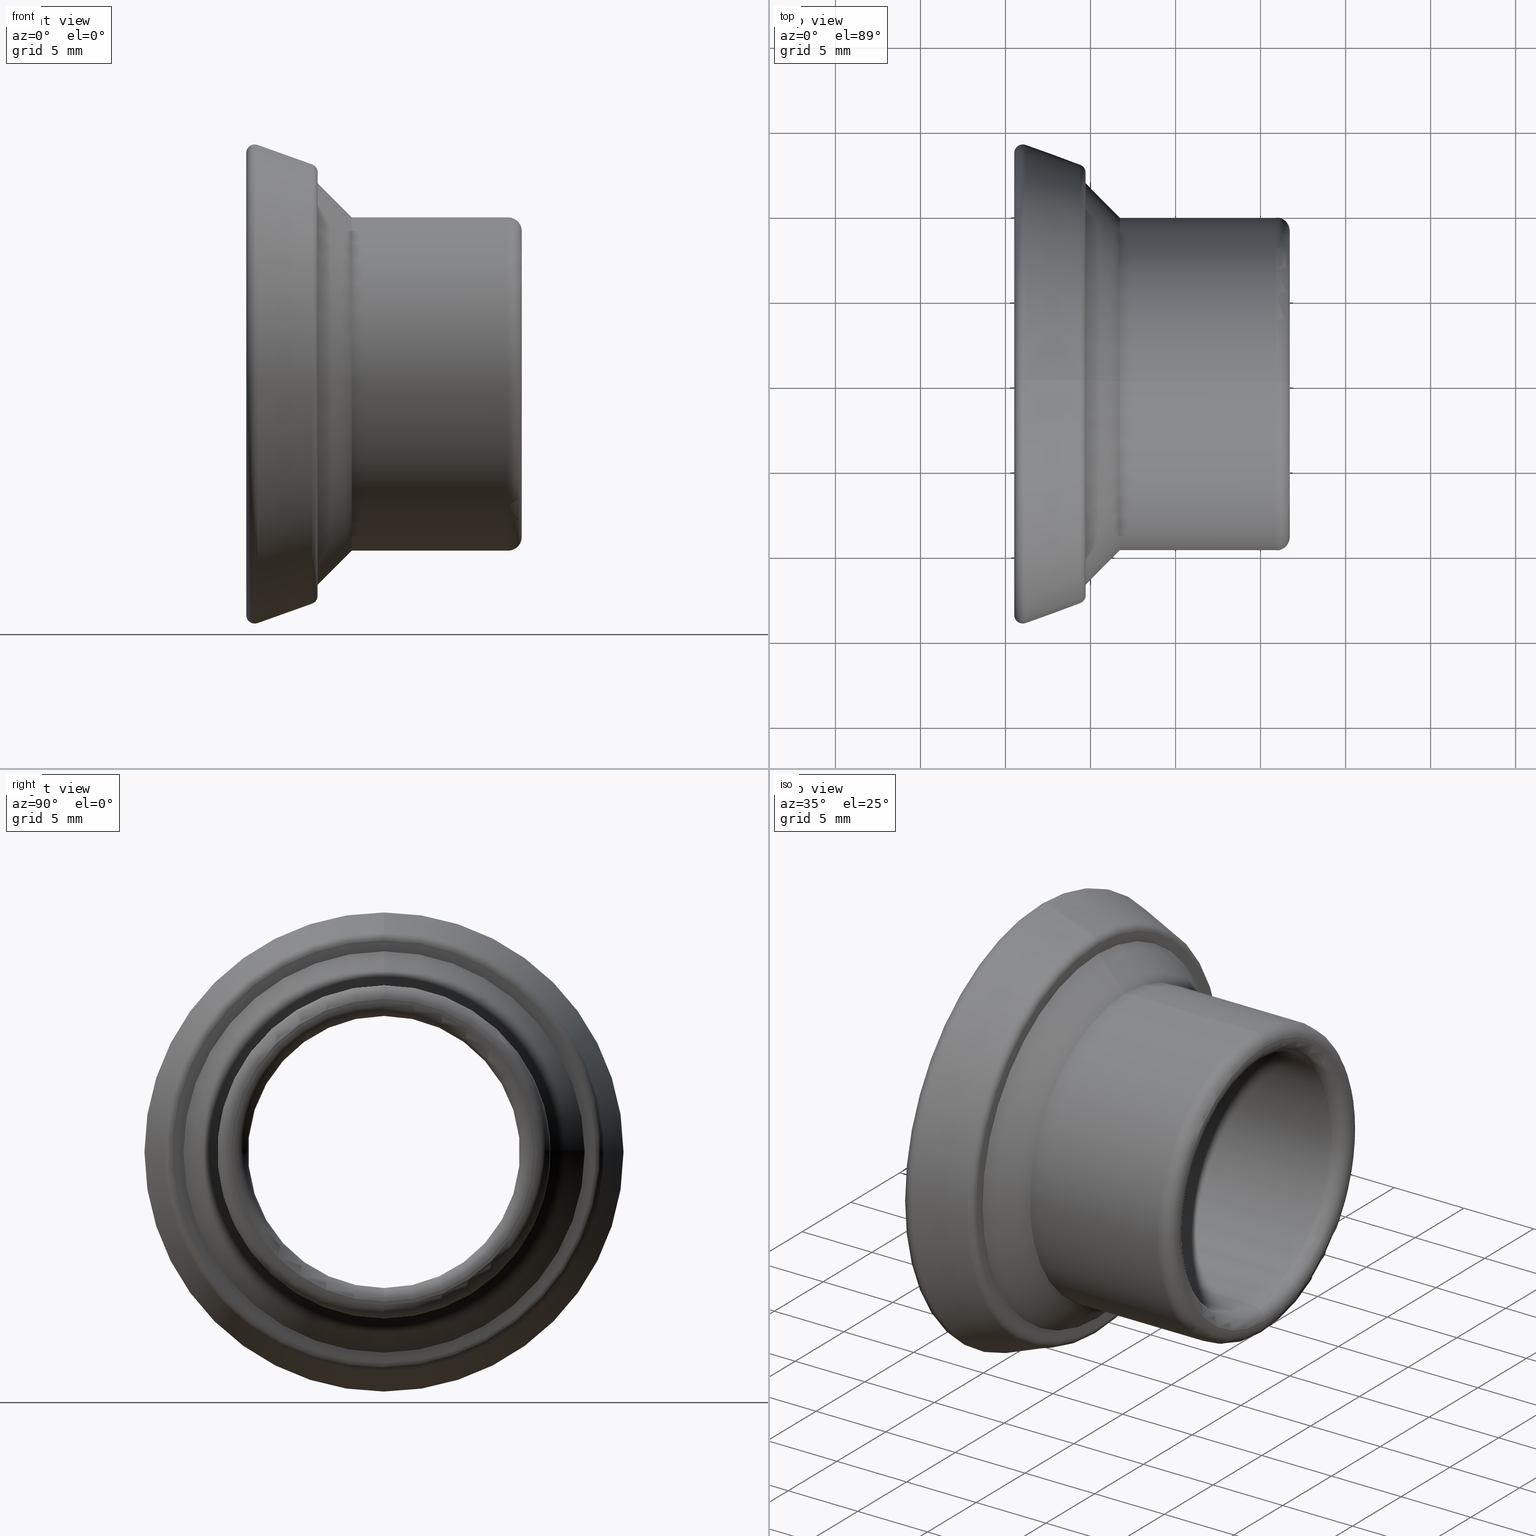
[diagram: canonical four-view strip — front | top / right | iso, engineering-drawing reading convention]
A machine part, canonical four-view strip (front | top / right | iso — engineering-drawing reading convention). The complete STEP part file that produces these views, byte-faithful:
ISO-10303-21;
HEADER;
/* Generated by software containing ST-Developer
 * from STEP Tools, Inc. (www.steptools.com) 
 */
/* OPTION: using custom schema-name function */

FILE_DESCRIPTION(
/* description */ ('VariCAD 2015-2.06 AP-214'),
/* implementation_level */ '2;1');

FILE_NAME(
/* name */ '0393-27-04.stp',
/* time_stamp */ '2016-05-11T12:18:29-06:00',
/* author */ (''),
/* organization */ (''),
/* preprocessor_version */ 'ST-DEVELOPER v14',
/* originating_system */ 'VariCAD 2015-2.06; kernel version (20130303)',

/* authorisation */ '');

FILE_SCHEMA (('AUTOMOTIVE_DESIGN'));
ENDSEC;

DATA;
#10=MECHANICAL_DESIGN_GEOMETRIC_PRESENTATION_REPRESENTATION('',(#257),#826);
#11=CONTEXT_DEPENDENT_SHAPE_REPRESENTATION(#13,#435);
#12=NEXT_ASSEMBLY_USAGE_OCCURRENCE('','','',#436,#437,'');
#13=(
REPRESENTATION_RELATIONSHIP('','',#450,#451)
REPRESENTATION_RELATIONSHIP_WITH_TRANSFORMATION(#14)
SHAPE_REPRESENTATION_RELATIONSHIP()
);
#14=ITEM_DEFINED_TRANSFORMATION('','',#530,#453);
#15=SHAPE_REPRESENTATION_RELATIONSHIP('','',#451,#16);
#16=ADVANCED_BREP_SHAPE_REPRESENTATION('',(#17,#529),#825);
#17=MANIFOLD_SOLID_BREP('',#18);
#18=CLOSED_SHELL('',(#45,#46,#47,#48,#49,#50,#51,#52,#53,#54,#55,#56,#57,
#58,#59,#60,#61,#62,#63,#64,#65,#66,#67,#68,#69,#70,#71,#72,#73));
#19=CONICAL_SURFACE('',#510,12.8,0.343023940420703);
#20=CONICAL_SURFACE('',#511,12.8,0.343023940420703);
#21=CONICAL_SURFACE('',#512,8.,0.785398163397449);
#22=CONICAL_SURFACE('',#513,8.,0.785398163397449);
#23=CONICAL_SURFACE('',#519,9.8,0.78539816339745);
#24=CONICAL_SURFACE('',#520,9.8,0.78539816339745);
#25=TOROIDAL_SURFACE('',#506,8.8,0.8);
#26=TOROIDAL_SURFACE('',#507,8.8,0.8);
#27=TOROIDAL_SURFACE('',#508,9.,0.8);
#28=TOROIDAL_SURFACE('',#509,9.,0.8);
#29=TOROIDAL_SURFACE('',#514,10.,2.);
#30=TOROIDAL_SURFACE('',#515,10.,2.);
#31=TOROIDAL_SURFACE('',#516,10.,2.);
#32=TOROIDAL_SURFACE('',#517,10.,2.);
#33=TOROIDAL_SURFACE('',#521,13.5904975447386,0.5);
#34=TOROIDAL_SURFACE('',#522,13.5904975447386,0.5);
#35=TOROIDAL_SURFACE('',#524,12.5,0.5);
#36=TOROIDAL_SURFACE('',#526,12.5,0.5);
#37=TOROIDAL_SURFACE('',#527,12.4476404018815,0.5);
#38=TOROIDAL_SURFACE('',#528,12.4476404018815,0.5);
#39=CYLINDRICAL_SURFACE('',#501,9.8);
#40=CYLINDRICAL_SURFACE('',#502,9.8);
#41=CYLINDRICAL_SURFACE('',#504,8.);
#42=CYLINDRICAL_SURFACE('',#505,8.);
#43=CYLINDRICAL_SURFACE('',#523,12.);
#44=CYLINDRICAL_SURFACE('',#525,12.);
#45=ADVANCED_FACE('',(#103,#74),#254,.T.);
#46=ADVANCED_FACE('',(#75),#39,.T.);
#47=ADVANCED_FACE('',(#76),#40,.T.);
#48=ADVANCED_FACE('',(#104,#77),#255,.T.);
#49=ADVANCED_FACE('',(#78),#41,.F.);
#50=ADVANCED_FACE('',(#79),#42,.F.);
#51=ADVANCED_FACE('',(#80),#25,.T.);
#52=ADVANCED_FACE('',(#81),#26,.T.);
#53=ADVANCED_FACE('',(#82),#27,.T.);
#54=ADVANCED_FACE('',(#83),#28,.T.);
#55=ADVANCED_FACE('',(#84),#19,.T.);
#56=ADVANCED_FACE('',(#85),#20,.T.);
#57=ADVANCED_FACE('',(#86),#21,.F.);
#58=ADVANCED_FACE('',(#87),#22,.F.);
#59=ADVANCED_FACE('',(#88),#29,.T.);
#60=ADVANCED_FACE('',(#89),#30,.T.);
#61=ADVANCED_FACE('',(#90),#31,.F.);
#62=ADVANCED_FACE('',(#91),#32,.F.);
#63=ADVANCED_FACE('',(#105,#92),#256,.T.);
#64=ADVANCED_FACE('',(#93),#23,.T.);
#65=ADVANCED_FACE('',(#94),#24,.T.);
#66=ADVANCED_FACE('',(#95),#33,.T.);
#67=ADVANCED_FACE('',(#96),#34,.T.);
#68=ADVANCED_FACE('',(#97),#43,.T.);
#69=ADVANCED_FACE('',(#98),#35,.T.);
#70=ADVANCED_FACE('',(#99),#44,.T.);
#71=ADVANCED_FACE('',(#100),#36,.T.);
#72=ADVANCED_FACE('',(#101),#37,.T.);
#73=ADVANCED_FACE('',(#102),#38,.T.);
#74=FACE_OUTER_BOUND('',#107,.F.);
#75=FACE_OUTER_BOUND('',#108,.F.);
#76=FACE_OUTER_BOUND('',#109,.F.);
#77=FACE_OUTER_BOUND('',#111,.F.);
#78=FACE_OUTER_BOUND('',#112,.F.);
#79=FACE_OUTER_BOUND('',#113,.F.);
#80=FACE_OUTER_BOUND('',#114,.F.);
#81=FACE_OUTER_BOUND('',#115,.F.);
#82=FACE_OUTER_BOUND('',#116,.F.);
#83=FACE_OUTER_BOUND('',#117,.F.);
#84=FACE_OUTER_BOUND('',#118,.F.);
#85=FACE_OUTER_BOUND('',#119,.F.);
#86=FACE_OUTER_BOUND('',#120,.F.);
#87=FACE_OUTER_BOUND('',#121,.F.);
#88=FACE_OUTER_BOUND('',#122,.F.);
#89=FACE_OUTER_BOUND('',#123,.F.);
#90=FACE_OUTER_BOUND('',#124,.F.);
#91=FACE_OUTER_BOUND('',#125,.F.);
#92=FACE_OUTER_BOUND('',#127,.F.);
#93=FACE_OUTER_BOUND('',#128,.F.);
#94=FACE_OUTER_BOUND('',#129,.F.);
#95=FACE_OUTER_BOUND('',#130,.F.);
#96=FACE_OUTER_BOUND('',#131,.F.);
#97=FACE_OUTER_BOUND('',#132,.F.);
#98=FACE_OUTER_BOUND('',#133,.F.);
#99=FACE_OUTER_BOUND('',#134,.F.);
#100=FACE_OUTER_BOUND('',#135,.F.);
#101=FACE_OUTER_BOUND('',#136,.F.);
#102=FACE_OUTER_BOUND('',#137,.F.);
#103=FACE_BOUND('',#106,.F.);
#104=FACE_BOUND('',#110,.F.);
#105=FACE_BOUND('',#126,.F.);
#106=EDGE_LOOP('',(#138,#139));
#107=EDGE_LOOP('',(#140,#141));
#108=EDGE_LOOP('',(#142,#143,#144,#145));
#109=EDGE_LOOP('',(#146,#147,#148,#149));
#110=EDGE_LOOP('',(#150,#151));
#111=EDGE_LOOP('',(#152,#153));
#112=EDGE_LOOP('',(#154,#155,#156,#157));
#113=EDGE_LOOP('',(#158,#159,#160,#161));
#114=EDGE_LOOP('',(#162,#163,#164,#165));
#115=EDGE_LOOP('',(#166,#167,#168,#169));
#116=EDGE_LOOP('',(#170,#171,#172,#173));
#117=EDGE_LOOP('',(#174,#175,#176,#177));
#118=EDGE_LOOP('',(#178,#179,#180,#181));
#119=EDGE_LOOP('',(#182,#183,#184,#185));
#120=EDGE_LOOP('',(#186,#187,#188,#189));
#121=EDGE_LOOP('',(#190,#191,#192,#193));
#122=EDGE_LOOP('',(#194,#195,#196,#197));
#123=EDGE_LOOP('',(#198,#199,#200,#201));
#124=EDGE_LOOP('',(#202,#203,#204,#205));
#125=EDGE_LOOP('',(#206,#207,#208,#209));
#126=EDGE_LOOP('',(#210,#211));
#127=EDGE_LOOP('',(#212,#213));
#128=EDGE_LOOP('',(#214,#215,#216,#217));
#129=EDGE_LOOP('',(#218,#219,#220,#221));
#130=EDGE_LOOP('',(#222,#223,#224,#225));
#131=EDGE_LOOP('',(#226,#227,#228,#229));
#132=EDGE_LOOP('',(#230,#231,#232,#233));
#133=EDGE_LOOP('',(#234,#235,#236,#237));
#134=EDGE_LOOP('',(#238,#239,#240,#241));
#135=EDGE_LOOP('',(#242,#243,#244,#245));
#136=EDGE_LOOP('',(#246,#247,#248,#249));
#137=EDGE_LOOP('',(#250,#251,#252,#253));
#138=ORIENTED_EDGE('',*,*,#292,.T.);
#139=ORIENTED_EDGE('',*,*,#291,.T.);
#140=ORIENTED_EDGE('',*,*,#290,.F.);
#141=ORIENTED_EDGE('',*,*,#289,.F.);
#142=ORIENTED_EDGE('',*,*,#301,.F.);
#143=ORIENTED_EDGE('',*,*,#295,.T.);
#144=ORIENTED_EDGE('',*,*,#302,.T.);
#145=ORIENTED_EDGE('',*,*,#294,.F.);
#146=ORIENTED_EDGE('',*,*,#301,.T.);
#147=ORIENTED_EDGE('',*,*,#293,.F.);
#148=ORIENTED_EDGE('',*,*,#302,.F.);
#149=ORIENTED_EDGE('',*,*,#297,.T.);
#150=ORIENTED_EDGE('',*,*,#300,.T.);
#151=ORIENTED_EDGE('',*,*,#299,.T.);
#152=ORIENTED_EDGE('',*,*,#298,.F.);
#153=ORIENTED_EDGE('',*,*,#296,.F.);
#154=ORIENTED_EDGE('',*,*,#307,.T.);
#155=ORIENTED_EDGE('',*,*,#303,.T.);
#156=ORIENTED_EDGE('',*,*,#308,.F.);
#157=ORIENTED_EDGE('',*,*,#305,.F.);
#158=ORIENTED_EDGE('',*,*,#307,.F.);
#159=ORIENTED_EDGE('',*,*,#306,.F.);
#160=ORIENTED_EDGE('',*,*,#308,.T.);
#161=ORIENTED_EDGE('',*,*,#304,.T.);
#162=ORIENTED_EDGE('',*,*,#310,.F.);
#163=ORIENTED_EDGE('',*,*,#300,.F.);
#164=ORIENTED_EDGE('',*,*,#309,.T.);
#165=ORIENTED_EDGE('',*,*,#306,.T.);
#166=ORIENTED_EDGE('',*,*,#309,.F.);
#167=ORIENTED_EDGE('',*,*,#299,.F.);
#168=ORIENTED_EDGE('',*,*,#310,.T.);
#169=ORIENTED_EDGE('',*,*,#305,.T.);
#170=ORIENTED_EDGE('',*,*,#312,.F.);
#171=ORIENTED_EDGE('',*,*,#297,.F.);
#172=ORIENTED_EDGE('',*,*,#311,.T.);
#173=ORIENTED_EDGE('',*,*,#298,.T.);
#174=ORIENTED_EDGE('',*,*,#311,.F.);
#175=ORIENTED_EDGE('',*,*,#295,.F.);
#176=ORIENTED_EDGE('',*,*,#312,.T.);
#177=ORIENTED_EDGE('',*,*,#296,.T.);
#178=ORIENTED_EDGE('',*,*,#318,.F.);
#179=ORIENTED_EDGE('',*,*,#315,.F.);
#180=ORIENTED_EDGE('',*,*,#317,.T.);
#181=ORIENTED_EDGE('',*,*,#313,.T.);
#182=ORIENTED_EDGE('',*,*,#317,.F.);
#183=ORIENTED_EDGE('',*,*,#316,.F.);
#184=ORIENTED_EDGE('',*,*,#318,.T.);
#185=ORIENTED_EDGE('',*,*,#314,.T.);
#186=ORIENTED_EDGE('',*,*,#324,.F.);
#187=ORIENTED_EDGE('',*,*,#322,.F.);
#188=ORIENTED_EDGE('',*,*,#323,.T.);
#189=ORIENTED_EDGE('',*,*,#320,.T.);
#190=ORIENTED_EDGE('',*,*,#323,.F.);
#191=ORIENTED_EDGE('',*,*,#321,.F.);
#192=ORIENTED_EDGE('',*,*,#324,.T.);
#193=ORIENTED_EDGE('',*,*,#319,.T.);
#194=ORIENTED_EDGE('',*,*,#326,.F.);
#195=ORIENTED_EDGE('',*,*,#304,.F.);
#196=ORIENTED_EDGE('',*,*,#325,.T.);
#197=ORIENTED_EDGE('',*,*,#322,.T.);
#198=ORIENTED_EDGE('',*,*,#325,.F.);
#199=ORIENTED_EDGE('',*,*,#303,.F.);
#200=ORIENTED_EDGE('',*,*,#326,.T.);
#201=ORIENTED_EDGE('',*,*,#321,.T.);
#202=ORIENTED_EDGE('',*,*,#330,.T.);
#203=ORIENTED_EDGE('',*,*,#320,.F.);
#204=ORIENTED_EDGE('',*,*,#329,.F.);
#205=ORIENTED_EDGE('',*,*,#328,.T.);
#206=ORIENTED_EDGE('',*,*,#329,.T.);
#207=ORIENTED_EDGE('',*,*,#319,.F.);
#208=ORIENTED_EDGE('',*,*,#330,.F.);
#209=ORIENTED_EDGE('',*,*,#327,.T.);
#210=ORIENTED_EDGE('',*,*,#332,.F.);
#211=ORIENTED_EDGE('',*,*,#331,.F.);
#212=ORIENTED_EDGE('',*,*,#334,.T.);
#213=ORIENTED_EDGE('',*,*,#333,.T.);
#214=ORIENTED_EDGE('',*,*,#336,.T.);
#215=ORIENTED_EDGE('',*,*,#292,.F.);
#216=ORIENTED_EDGE('',*,*,#335,.F.);
#217=ORIENTED_EDGE('',*,*,#294,.T.);
#218=ORIENTED_EDGE('',*,*,#335,.T.);
#219=ORIENTED_EDGE('',*,*,#291,.F.);
#220=ORIENTED_EDGE('',*,*,#336,.F.);
#221=ORIENTED_EDGE('',*,*,#293,.T.);
#222=ORIENTED_EDGE('',*,*,#338,.F.);
#223=ORIENTED_EDGE('',*,*,#334,.F.);
#224=ORIENTED_EDGE('',*,*,#337,.T.);
#225=ORIENTED_EDGE('',*,*,#316,.T.);
#226=ORIENTED_EDGE('',*,*,#337,.F.);
#227=ORIENTED_EDGE('',*,*,#333,.F.);
#228=ORIENTED_EDGE('',*,*,#338,.T.);
#229=ORIENTED_EDGE('',*,*,#315,.T.);
#230=ORIENTED_EDGE('',*,*,#341,.T.);
#231=ORIENTED_EDGE('',*,*,#327,.F.);
#232=ORIENTED_EDGE('',*,*,#340,.F.);
#233=ORIENTED_EDGE('',*,*,#339,.T.);
#234=ORIENTED_EDGE('',*,*,#343,.F.);
#235=ORIENTED_EDGE('',*,*,#339,.F.);
#236=ORIENTED_EDGE('',*,*,#342,.T.);
#237=ORIENTED_EDGE('',*,*,#332,.T.);
#238=ORIENTED_EDGE('',*,*,#340,.T.);
#239=ORIENTED_EDGE('',*,*,#328,.F.);
#240=ORIENTED_EDGE('',*,*,#341,.F.);
#241=ORIENTED_EDGE('',*,*,#344,.T.);
#242=ORIENTED_EDGE('',*,*,#342,.F.);
#243=ORIENTED_EDGE('',*,*,#344,.F.);
#244=ORIENTED_EDGE('',*,*,#343,.T.);
#245=ORIENTED_EDGE('',*,*,#331,.T.);
#246=ORIENTED_EDGE('',*,*,#346,.F.);
#247=ORIENTED_EDGE('',*,*,#314,.F.);
#248=ORIENTED_EDGE('',*,*,#345,.T.);
#249=ORIENTED_EDGE('',*,*,#290,.T.);
#250=ORIENTED_EDGE('',*,*,#345,.F.);
#251=ORIENTED_EDGE('',*,*,#313,.F.);
#252=ORIENTED_EDGE('',*,*,#346,.T.);
#253=ORIENTED_EDGE('',*,*,#289,.T.);
#254=PLANE('',#500);
#255=PLANE('',#503);
#256=PLANE('',#518);
#257=STYLED_ITEM('',(#258),#17);
#258=PRESENTATION_STYLE_ASSIGNMENT((#259));
#259=SURFACE_STYLE_USAGE(.BOTH.,#260);
#260=SURFACE_SIDE_STYLE('',(#261));
#261=SURFACE_STYLE_FILL_AREA(#262);
#262=FILL_AREA_STYLE('',(#263));
#263=FILL_AREA_STYLE_COLOUR('',#264);
#264=COLOUR_RGB('Colour',0.0313725490196078,0.501960784313725,0.862745098039216);
#265=LINE('',#747,#277);
#266=LINE('',#748,#278);
#267=LINE('',#753,#279);
#268=LINE('',#754,#280);
#269=LINE('',#763,#281);
#270=LINE('',#764,#282);
#271=LINE('',#769,#283);
#272=LINE('',#770,#284);
#273=LINE('',#781,#285);
#274=LINE('',#782,#286);
#275=LINE('',#786,#287);
#276=LINE('',#787,#288);
#277=VECTOR('',#559,9.2);
#278=VECTOR('',#560,9.2);
#279=VECTOR('',#569,9.3715728752538);
#280=VECTOR('',#570,9.37157287525379);
#281=VECTOR('',#587,3.39795857081566);
#282=VECTOR('',#588,3.39795857081565);
#283=VECTOR('',#597,4.);
#284=VECTOR('',#598,4.);
#285=VECTOR('',#619,2.82842712474619);
#286=VECTOR('',#620,2.82842712474619);
#287=VECTOR('',#627,0.128427124746175);
#288=VECTOR('',#628,0.128427124746175);
#289=EDGE_CURVE('',#424,#423,#347,.T.);
#290=EDGE_CURVE('',#423,#424,#348,.T.);
#291=EDGE_CURVE('',#422,#421,#349,.T.);
#292=EDGE_CURVE('',#421,#422,#350,.T.);
#293=EDGE_CURVE('',#420,#419,#351,.T.);
#294=EDGE_CURVE('',#419,#420,#352,.T.);
#295=EDGE_CURVE('',#418,#417,#353,.T.);
#296=EDGE_CURVE('',#416,#415,#354,.T.);
#297=EDGE_CURVE('',#417,#418,#355,.T.);
#298=EDGE_CURVE('',#415,#416,#356,.T.);
#299=EDGE_CURVE('',#414,#413,#357,.T.);
#300=EDGE_CURVE('',#413,#414,#358,.T.);
#301=EDGE_CURVE('',#418,#419,#265,.T.);
#302=EDGE_CURVE('',#417,#420,#266,.T.);
#303=EDGE_CURVE('',#412,#411,#359,.T.);
#304=EDGE_CURVE('',#411,#412,#360,.T.);
#305=EDGE_CURVE('',#410,#409,#361,.T.);
#306=EDGE_CURVE('',#409,#410,#362,.T.);
#307=EDGE_CURVE('',#410,#412,#267,.T.);
#308=EDGE_CURVE('',#409,#411,#268,.T.);
#309=EDGE_CURVE('',#413,#409,#363,.T.);
#310=EDGE_CURVE('',#414,#410,#364,.T.);
#311=EDGE_CURVE('',#417,#415,#365,.T.);
#312=EDGE_CURVE('',#418,#416,#366,.T.);
#313=EDGE_CURVE('',#408,#407,#367,.T.);
#314=EDGE_CURVE('',#407,#408,#368,.T.);
#315=EDGE_CURVE('',#406,#405,#369,.T.);
#316=EDGE_CURVE('',#405,#406,#370,.T.);
#317=EDGE_CURVE('',#406,#408,#269,.T.);
#318=EDGE_CURVE('',#405,#407,#270,.T.);
#319=EDGE_CURVE('',#404,#403,#371,.T.);
#320=EDGE_CURVE('',#403,#404,#372,.T.);
#321=EDGE_CURVE('',#402,#401,#373,.T.);
#322=EDGE_CURVE('',#401,#402,#374,.T.);
#323=EDGE_CURVE('',#401,#403,#271,.T.);
#324=EDGE_CURVE('',#402,#404,#272,.T.);
#325=EDGE_CURVE('',#411,#401,#375,.T.);
#326=EDGE_CURVE('',#412,#402,#376,.T.);
#327=EDGE_CURVE('',#400,#399,#377,.T.);
#328=EDGE_CURVE('',#399,#400,#378,.T.);
#329=EDGE_CURVE('',#399,#403,#379,.T.);
#330=EDGE_CURVE('',#400,#404,#380,.T.);
#331=EDGE_CURVE('',#398,#397,#381,.T.);
#332=EDGE_CURVE('',#397,#398,#382,.T.);
#333=EDGE_CURVE('',#396,#395,#383,.T.);
#334=EDGE_CURVE('',#395,#396,#384,.T.);
#335=EDGE_CURVE('',#419,#421,#273,.T.);
#336=EDGE_CURVE('',#420,#422,#274,.T.);
#337=EDGE_CURVE('',#395,#405,#385,.T.);
#338=EDGE_CURVE('',#396,#406,#386,.T.);
#339=EDGE_CURVE('',#394,#393,#387,.T.);
#340=EDGE_CURVE('',#394,#400,#275,.T.);
#341=EDGE_CURVE('',#393,#399,#276,.T.);
#342=EDGE_CURVE('',#394,#397,#388,.T.);
#343=EDGE_CURVE('',#393,#398,#389,.T.);
#344=EDGE_CURVE('',#393,#394,#390,.T.);
#345=EDGE_CURVE('',#407,#423,#391,.T.);
#346=EDGE_CURVE('',#408,#424,#392,.T.);
#347=CIRCLE('',#454,12.4476404018815);
#348=CIRCLE('',#455,12.4476404018815);
#349=CIRCLE('',#456,11.8);
#350=CIRCLE('',#457,11.8);
#351=CIRCLE('',#458,9.8);
#352=CIRCLE('',#459,9.8);
#353=CIRCLE('',#460,9.8);
#354=CIRCLE('',#461,9.);
#355=CIRCLE('',#462,9.8);
#356=CIRCLE('',#463,9.);
#357=CIRCLE('',#464,8.8);
#358=CIRCLE('',#465,8.8);
#359=CIRCLE('',#466,8.);
#360=CIRCLE('',#467,8.);
#361=CIRCLE('',#468,8.);
#362=CIRCLE('',#469,8.);
#363=CIRCLE('',#470,0.8);
#364=CIRCLE('',#471,0.8);
#365=CIRCLE('',#472,0.8);
#366=CIRCLE('',#473,0.8);
#367=CIRCLE('',#474,12.9185113576789);
#368=CIRCLE('',#475,12.9185113576789);
#369=CIRCLE('',#476,14.061368500536);
#370=CIRCLE('',#477,14.061368500536);
#371=CIRCLE('',#478,11.4142135623731);
#372=CIRCLE('',#479,11.4142135623731);
#373=CIRCLE('',#480,8.5857864376269);
#374=CIRCLE('',#481,8.5857864376269);
#375=CIRCLE('',#482,2.);
#376=CIRCLE('',#483,2.);
#377=CIRCLE('',#484,12.);
#378=CIRCLE('',#485,12.);
#379=CIRCLE('',#486,2.);
#380=CIRCLE('',#487,2.);
#381=CIRCLE('',#488,12.5);
#382=CIRCLE('',#489,12.5);
#383=CIRCLE('',#490,13.5904975447386);
#384=CIRCLE('',#491,13.5904975447386);
#385=CIRCLE('',#492,0.5);
#386=CIRCLE('',#493,0.5);
#387=CIRCLE('',#494,12.);
#388=CIRCLE('',#495,0.5);
#389=CIRCLE('',#496,0.5);
#390=CIRCLE('',#497,12.);
#391=CIRCLE('',#498,0.5);
#392=CIRCLE('',#499,0.5);
#393=VERTEX_POINT('',#703);
#394=VERTEX_POINT('',#704);
#395=VERTEX_POINT('',#705);
#396=VERTEX_POINT('',#706);
#397=VERTEX_POINT('',#707);
#398=VERTEX_POINT('',#708);
#399=VERTEX_POINT('',#709);
#400=VERTEX_POINT('',#710);
#401=VERTEX_POINT('',#711);
#402=VERTEX_POINT('',#712);
#403=VERTEX_POINT('',#713);
#404=VERTEX_POINT('',#714);
#405=VERTEX_POINT('',#715);
#406=VERTEX_POINT('',#716);
#407=VERTEX_POINT('',#717);
#408=VERTEX_POINT('',#718);
#409=VERTEX_POINT('',#719);
#410=VERTEX_POINT('',#720);
#411=VERTEX_POINT('',#721);
#412=VERTEX_POINT('',#722);
#413=VERTEX_POINT('',#723);
#414=VERTEX_POINT('',#724);
#415=VERTEX_POINT('',#725);
#416=VERTEX_POINT('',#726);
#417=VERTEX_POINT('',#727);
#418=VERTEX_POINT('',#728);
#419=VERTEX_POINT('',#729);
#420=VERTEX_POINT('',#730);
#421=VERTEX_POINT('',#731);
#422=VERTEX_POINT('',#732);
#423=VERTEX_POINT('',#733);
#424=VERTEX_POINT('',#734);
#425=PRODUCT_CATEGORY_RELATIONSHIP('','',#429,#427);
#426=PRODUCT_CATEGORY_RELATIONSHIP('','',#430,#428);
#427=PRODUCT_RELATED_PRODUCT_CATEGORY('detail','',(#442));
#428=PRODUCT_RELATED_PRODUCT_CATEGORY('detail','',(#443));
#429=PRODUCT_CATEGORY('part','');
#430=PRODUCT_CATEGORY('part','');
#431=SHAPE_DEFINITION_REPRESENTATION(#433,#450);
#432=SHAPE_DEFINITION_REPRESENTATION(#434,#451);
#433=PRODUCT_DEFINITION_SHAPE('','Shape',#436);
#434=PRODUCT_DEFINITION_SHAPE('','Shape',#437);
#435=PRODUCT_DEFINITION_SHAPE('','',#12);
#436=PRODUCT_DEFINITION('','',#438,#440);
#437=PRODUCT_DEFINITION('','',#439,#441);
#438=PRODUCT_DEFINITION_FORMATION('','',#442);
#439=PRODUCT_DEFINITION_FORMATION('','',#443);
#440=PRODUCT_DEFINITION_CONTEXT('part definition',#448,'');
#441=PRODUCT_DEFINITION_CONTEXT('part definition',#449,'');
#442=PRODUCT('0393-27-04','0393-27-04','not specified',(#444));
#443=PRODUCT('0393-27-04','0393-27-04','not specified',(#445));
#444=PRODUCT_CONTEXT('',#448,'mechanical');
#445=PRODUCT_CONTEXT('',#449,'mechanical');
#446=APPLICATION_PROTOCOL_DEFINITION('Draft International Standard',
'automotive_design',1997,#448);
#447=APPLICATION_PROTOCOL_DEFINITION('Draft International Standard',
'automotive_design',1997,#449);
#448=APPLICATION_CONTEXT('automotive design');
#449=APPLICATION_CONTEXT('automotive design');
#450=SHAPE_REPRESENTATION('0393-27-04',(#452,#530),#824);
#451=SHAPE_REPRESENTATION('0393-27-04',(#453),#825);
#452=AXIS2_PLACEMENT_3D('',#701,#531,#532);
#453=AXIS2_PLACEMENT_3D('',#702,#533,#534);
#454=AXIS2_PLACEMENT_3D('',#735,#535,#536);
#455=AXIS2_PLACEMENT_3D('',#736,#537,#538);
#456=AXIS2_PLACEMENT_3D('',#737,#539,#540);
#457=AXIS2_PLACEMENT_3D('',#738,#541,#542);
#458=AXIS2_PLACEMENT_3D('',#739,#543,#544);
#459=AXIS2_PLACEMENT_3D('',#740,#545,#546);
#460=AXIS2_PLACEMENT_3D('',#741,#547,#548);
#461=AXIS2_PLACEMENT_3D('',#742,#549,#550);
#462=AXIS2_PLACEMENT_3D('',#743,#551,#552);
#463=AXIS2_PLACEMENT_3D('',#744,#553,#554);
#464=AXIS2_PLACEMENT_3D('',#745,#555,#556);
#465=AXIS2_PLACEMENT_3D('',#746,#557,#558);
#466=AXIS2_PLACEMENT_3D('',#749,#561,#562);
#467=AXIS2_PLACEMENT_3D('',#750,#563,#564);
#468=AXIS2_PLACEMENT_3D('',#751,#565,#566);
#469=AXIS2_PLACEMENT_3D('',#752,#567,#568);
#470=AXIS2_PLACEMENT_3D('',#755,#571,#572);
#471=AXIS2_PLACEMENT_3D('',#756,#573,#574);
#472=AXIS2_PLACEMENT_3D('',#757,#575,#576);
#473=AXIS2_PLACEMENT_3D('',#758,#577,#578);
#474=AXIS2_PLACEMENT_3D('',#759,#579,#580);
#475=AXIS2_PLACEMENT_3D('',#760,#581,#582);
#476=AXIS2_PLACEMENT_3D('',#761,#583,#584);
#477=AXIS2_PLACEMENT_3D('',#762,#585,#586);
#478=AXIS2_PLACEMENT_3D('',#765,#589,#590);
#479=AXIS2_PLACEMENT_3D('',#766,#591,#592);
#480=AXIS2_PLACEMENT_3D('',#767,#593,#594);
#481=AXIS2_PLACEMENT_3D('',#768,#595,#596);
#482=AXIS2_PLACEMENT_3D('',#771,#599,#600);
#483=AXIS2_PLACEMENT_3D('',#772,#601,#602);
#484=AXIS2_PLACEMENT_3D('',#773,#603,#604);
#485=AXIS2_PLACEMENT_3D('',#774,#605,#606);
#486=AXIS2_PLACEMENT_3D('',#775,#607,#608);
#487=AXIS2_PLACEMENT_3D('',#776,#609,#610);
#488=AXIS2_PLACEMENT_3D('',#777,#611,#612);
#489=AXIS2_PLACEMENT_3D('',#778,#613,#614);
#490=AXIS2_PLACEMENT_3D('',#779,#615,#616);
#491=AXIS2_PLACEMENT_3D('',#780,#617,#618);
#492=AXIS2_PLACEMENT_3D('',#783,#621,#622);
#493=AXIS2_PLACEMENT_3D('',#784,#623,#624);
#494=AXIS2_PLACEMENT_3D('',#785,#625,#626);
#495=AXIS2_PLACEMENT_3D('',#788,#629,#630);
#496=AXIS2_PLACEMENT_3D('',#789,#631,#632);
#497=AXIS2_PLACEMENT_3D('',#790,#633,#634);
#498=AXIS2_PLACEMENT_3D('',#791,#635,#636);
#499=AXIS2_PLACEMENT_3D('',#792,#637,#638);
#500=AXIS2_PLACEMENT_3D('',#793,#639,#640);
#501=AXIS2_PLACEMENT_3D('',#794,#641,#642);
#502=AXIS2_PLACEMENT_3D('',#795,#643,#644);
#503=AXIS2_PLACEMENT_3D('',#796,#645,#646);
#504=AXIS2_PLACEMENT_3D('',#797,#647,#648);
#505=AXIS2_PLACEMENT_3D('',#798,#649,#650);
#506=AXIS2_PLACEMENT_3D('',#799,#651,#652);
#507=AXIS2_PLACEMENT_3D('',#800,#653,#654);
#508=AXIS2_PLACEMENT_3D('',#801,#655,#656);
#509=AXIS2_PLACEMENT_3D('',#802,#657,#658);
#510=AXIS2_PLACEMENT_3D('',#803,#660,#659);
#511=AXIS2_PLACEMENT_3D('',#804,#662,#661);
#512=AXIS2_PLACEMENT_3D('',#805,#664,#663);
#513=AXIS2_PLACEMENT_3D('',#806,#666,#665);
#514=AXIS2_PLACEMENT_3D('',#807,#667,#668);
#515=AXIS2_PLACEMENT_3D('',#808,#669,#670);
#516=AXIS2_PLACEMENT_3D('',#809,#671,#672);
#517=AXIS2_PLACEMENT_3D('',#810,#673,#674);
#518=AXIS2_PLACEMENT_3D('',#811,#675,#676);
#519=AXIS2_PLACEMENT_3D('',#812,#678,#677);
#520=AXIS2_PLACEMENT_3D('',#813,#680,#679);
#521=AXIS2_PLACEMENT_3D('',#814,#681,#682);
#522=AXIS2_PLACEMENT_3D('',#815,#683,#684);
#523=AXIS2_PLACEMENT_3D('',#816,#685,#686);
#524=AXIS2_PLACEMENT_3D('',#817,#687,#688);
#525=AXIS2_PLACEMENT_3D('',#818,#689,#690);
#526=AXIS2_PLACEMENT_3D('',#819,#691,#692);
#527=AXIS2_PLACEMENT_3D('',#820,#693,#694);
#528=AXIS2_PLACEMENT_3D('',#821,#695,#696);
#529=AXIS2_PLACEMENT_3D('',#822,#697,#698);
#530=AXIS2_PLACEMENT_3D('',#823,#699,#700);
#531=DIRECTION('',(0.,0.,1.));
#532=DIRECTION('',(1.,0.,0.));
#533=DIRECTION('',(0.,0.,1.));
#534=DIRECTION('',(1.,0.,0.));
#535=DIRECTION('',(1.,0.,0.));
#536=DIRECTION('',(0.,0.,-1.));
#537=DIRECTION('',(1.,0.,0.));
#538=DIRECTION('',(0.,0.,1.));
#539=DIRECTION('',(1.,0.,0.));
#540=DIRECTION('',(0.,0.,-1.));
#541=DIRECTION('',(1.,0.,0.));
#542=DIRECTION('',(0.,0.,1.));
#543=DIRECTION('',(1.,0.,0.));
#544=DIRECTION('',(0.,0.,-1.));
#545=DIRECTION('',(1.,0.,0.));
#546=DIRECTION('',(0.,0.,1.));
#547=DIRECTION('',(1.,0.,0.));
#548=DIRECTION('',(0.,0.,1.));
#549=DIRECTION('',(1.,0.,0.));
#550=DIRECTION('',(0.,0.,1.));
#551=DIRECTION('',(1.,0.,0.));
#552=DIRECTION('',(0.,0.,-1.));
#553=DIRECTION('',(1.,0.,0.));
#554=DIRECTION('',(0.,0.,-1.));
#555=DIRECTION('',(1.,0.,0.));
#556=DIRECTION('',(0.,0.,1.));
#557=DIRECTION('',(1.,0.,0.));
#558=DIRECTION('',(0.,0.,-1.));
#559=DIRECTION('',(-1.,0.,0.));
#560=DIRECTION('',(-1.,0.,0.));
#561=DIRECTION('',(1.,0.,0.));
#562=DIRECTION('',(0.,0.,1.));
#563=DIRECTION('',(1.,0.,0.));
#564=DIRECTION('',(0.,0.,-1.));
#565=DIRECTION('',(1.,0.,0.));
#566=DIRECTION('',(0.,0.,1.));
#567=DIRECTION('',(1.,0.,0.));
#568=DIRECTION('',(0.,0.,-1.));
#569=DIRECTION('',(-1.,0.,0.));
#570=DIRECTION('',(-1.,0.,0.));
#571=DIRECTION('',(0.,-1.,0.));
#572=DIRECTION('',(1.,0.,0.));
#573=DIRECTION('',(0.,1.,0.));
#574=DIRECTION('',(1.,0.,0.));
#575=DIRECTION('',(0.,-1.,0.));
#576=DIRECTION('',(0.,0.,-1.));
#577=DIRECTION('',(0.,1.,0.));
#578=DIRECTION('',(0.,0.,1.));
#579=DIRECTION('',(1.,0.,0.));
#580=DIRECTION('',(0.,0.,-1.));
#581=DIRECTION('',(1.,0.,0.));
#582=DIRECTION('',(0.,0.,1.));
#583=DIRECTION('',(1.,0.,0.));
#584=DIRECTION('',(0.,0.,-1.));
#585=DIRECTION('',(1.,0.,0.));
#586=DIRECTION('',(0.,0.,1.));
#587=DIRECTION('',(0.941741911594838,0.,0.336336396998156));
#588=DIRECTION('',(0.941741911594837,0.,-0.336336396998156));
#589=DIRECTION('',(1.,0.,0.));
#590=DIRECTION('',(0.,0.,1.));
#591=DIRECTION('',(1.,0.,0.));
#592=DIRECTION('',(0.,0.,-1.));
#593=DIRECTION('',(1.,0.,0.));
#594=DIRECTION('',(0.,0.,1.));
#595=DIRECTION('',(1.,0.,0.));
#596=DIRECTION('',(0.,0.,-1.));
#597=DIRECTION('',(-0.707106781186548,0.,-0.707106781186548));
#598=DIRECTION('',(-0.707106781186548,0.,0.707106781186548));
#599=DIRECTION('',(0.,-1.,0.));
#600=DIRECTION('',(0.,0.,1.));
#601=DIRECTION('',(0.,1.,0.));
#602=DIRECTION('',(0.,0.,-1.));
#603=DIRECTION('',(1.,0.,0.));
#604=DIRECTION('',(0.,0.,1.));
#605=DIRECTION('',(1.,0.,0.));
#606=DIRECTION('',(0.,0.,-1.));
#607=DIRECTION('',(0.,-1.,0.));
#608=DIRECTION('',(0.,0.,-1.));
#609=DIRECTION('',(0.,1.,0.));
#610=DIRECTION('',(0.,0.,1.));
#611=DIRECTION('',(1.,0.,0.));
#612=DIRECTION('',(0.,0.,-1.));
#613=DIRECTION('',(1.,0.,0.));
#614=DIRECTION('',(0.,0.,1.));
#615=DIRECTION('',(1.,0.,0.));
#616=DIRECTION('',(0.,0.,-1.));
#617=DIRECTION('',(1.,0.,0.));
#618=DIRECTION('',(0.,0.,1.));
#619=DIRECTION('',(-0.707106781186547,0.,0.707106781186547));
#620=DIRECTION('',(-0.707106781186547,0.,-0.707106781186547));
#621=DIRECTION('',(0.,1.,0.));
#622=DIRECTION('',(-1.,0.,0.));
#623=DIRECTION('',(0.,-1.,0.));
#624=DIRECTION('',(-1.,0.,0.));
#625=DIRECTION('',(1.,0.,0.));
#626=DIRECTION('',(0.,0.,1.));
#627=DIRECTION('',(-1.,0.,0.));
#628=DIRECTION('',(-1.,0.,0.));
#629=DIRECTION('',(0.,1.,0.));
#630=DIRECTION('',(0.,0.,-1.));
#631=DIRECTION('',(0.,-1.,0.));
#632=DIRECTION('',(0.,0.,1.));
#633=DIRECTION('',(1.,0.,0.));
#634=DIRECTION('',(0.,0.,-1.));
#635=DIRECTION('',(0.,1.,0.));
#636=DIRECTION('',(0.336336396998149,0.,0.94174191159484));
#637=DIRECTION('',(0.,-1.,0.));
#638=DIRECTION('',(0.336336396998162,0.,-0.941741911594835));
#639=DIRECTION('',(1.,0.,0.));
#640=DIRECTION('',(0.,-1.,0.));
#641=DIRECTION('',(1.,0.,0.));
#642=DIRECTION('',(0.,0.,1.));
#643=DIRECTION('',(1.,0.,0.));
#644=DIRECTION('',(0.,0.,-1.));
#645=DIRECTION('',(1.,0.,0.));
#646=DIRECTION('',(0.,-1.,0.));
#647=DIRECTION('',(1.,0.,0.));
#648=DIRECTION('',(0.,0.,1.));
#649=DIRECTION('',(1.,0.,0.));
#650=DIRECTION('',(0.,0.,-1.));
#651=DIRECTION('',(1.,0.,0.));
#652=DIRECTION('',(0.,0.,-1.));
#653=DIRECTION('',(1.,0.,0.));
#654=DIRECTION('',(0.,0.,1.));
#655=DIRECTION('',(1.,0.,0.));
#656=DIRECTION('',(0.,0.,-1.));
#657=DIRECTION('',(1.,0.,0.));
#658=DIRECTION('',(0.,0.,1.));
#659=DIRECTION('',(0.,0.,-1.));
#660=DIRECTION('',(-1.,0.,0.));
#661=DIRECTION('',(0.,0.,1.));
#662=DIRECTION('',(-1.,0.,0.));
#663=DIRECTION('',(0.,0.,-1.));
#664=DIRECTION('',(-1.,0.,0.));
#665=DIRECTION('',(0.,0.,1.));
#666=DIRECTION('',(-1.,0.,0.));
#667=DIRECTION('',(1.,0.,0.));
#668=DIRECTION('',(0.,0.,-1.));
#669=DIRECTION('',(1.,0.,0.));
#670=DIRECTION('',(0.,0.,1.));
#671=DIRECTION('',(1.,0.,0.));
#672=DIRECTION('',(0.,0.,-1.));
#673=DIRECTION('',(1.,0.,0.));
#674=DIRECTION('',(0.,0.,1.));
#675=DIRECTION('',(-1.,0.,0.));
#676=DIRECTION('',(0.,-1.,0.));
#677=DIRECTION('',(0.,0.,1.));
#678=DIRECTION('',(-1.,0.,0.));
#679=DIRECTION('',(0.,0.,-1.));
#680=DIRECTION('',(-1.,0.,0.));
#681=DIRECTION('',(1.,0.,0.));
#682=DIRECTION('',(0.,0.,1.));
#683=DIRECTION('',(1.,0.,0.));
#684=DIRECTION('',(0.,0.,-1.));
#685=DIRECTION('',(1.,0.,0.));
#686=DIRECTION('',(0.,0.,1.));
#687=DIRECTION('',(1.,0.,0.));
#688=DIRECTION('',(0.,0.,1.));
#689=DIRECTION('',(1.,0.,0.));
#690=DIRECTION('',(0.,0.,-1.));
#691=DIRECTION('',(1.,0.,0.));
#692=DIRECTION('',(0.,0.,-1.));
#693=DIRECTION('',(1.,0.,0.));
#694=DIRECTION('',(0.,0.,1.));
#695=DIRECTION('',(1.,0.,0.));
#696=DIRECTION('',(0.,0.,-1.));
#697=DIRECTION('',(0.,0.,1.));
#698=DIRECTION('',(1.,0.,0.));
#699=DIRECTION('',(0.,0.,1.));
#700=DIRECTION('',(1.,0.,0.));
#701=CARTESIAN_POINT('',(0.,0.,0.));
#702=CARTESIAN_POINT('',(0.,0.,0.));
#703=CARTESIAN_POINT('',(51.0150000130991,-49.9999958811694,-12.0000001271772));
#704=CARTESIAN_POINT('',(51.0150000130991,-49.9999958811694,11.9999998728228));
#705=CARTESIAN_POINT('',(50.5150000130991,-49.9999958811694,13.5904974175614));
#706=CARTESIAN_POINT('',(50.5150000130991,-49.9999958811694,-13.5904976719158));
#707=CARTESIAN_POINT('',(50.5150000130991,-49.9999958811694,12.4999998728228));
#708=CARTESIAN_POINT('',(50.5150000130991,-49.9999958811694,-12.5000001271772));
#709=CARTESIAN_POINT('',(50.8865728883529,-49.9999958811694,-12.0000001271772));
#710=CARTESIAN_POINT('',(50.8865728883529,-49.9999958811694,11.9999998728228));
#711=CARTESIAN_POINT('',(55.1292135754722,-49.9999958811694,-8.5857865648041));
#712=CARTESIAN_POINT('',(55.1292135754722,-49.9999958811694,8.5857863104497));
#713=CARTESIAN_POINT('',(52.300786450726,-49.9999958811694,-11.4142136895503));
#714=CARTESIAN_POINT('',(52.300786450726,-49.9999958811694,11.4142134351959));
#715=CARTESIAN_POINT('',(51.1831682115982,-49.9999958811694,14.0613683733588));
#716=CARTESIAN_POINT('',(51.1831682115982,-49.9999958811694,-14.0613686277132));
#717=CARTESIAN_POINT('',(54.3831682115982,-49.9999958811694,12.9185112305017));
#718=CARTESIAN_POINT('',(54.3831682115982,-49.9999958811694,-12.9185114848561));
#719=CARTESIAN_POINT('',(65.9150000130991,-49.9999958811694,-8.0000001271772));
#720=CARTESIAN_POINT('',(65.9150000130991,-49.9999958811694,7.9999998728228));
#721=CARTESIAN_POINT('',(56.5434271378453,-49.9999958811694,-8.0000001271772));
#722=CARTESIAN_POINT('',(56.5434271378453,-49.9999958811694,7.9999998728228));
#723=CARTESIAN_POINT('',(66.7150000130991,-49.9999958811694,-8.8000001271772));
#724=CARTESIAN_POINT('',(66.7150000130991,-49.9999958811694,8.7999998728228));
#725=CARTESIAN_POINT('',(66.7150000130991,-49.9999958811694,-9.0000001271772));
#726=CARTESIAN_POINT('',(66.7150000130991,-49.9999958811694,8.9999998728228));
#727=CARTESIAN_POINT('',(65.9150000130991,-49.9999958811694,-9.8000001271772));
#728=CARTESIAN_POINT('',(65.9150000130991,-49.9999958811694,9.7999998728228));
#729=CARTESIAN_POINT('',(56.7150000130991,-49.9999958811694,9.7999998728228));
#730=CARTESIAN_POINT('',(56.7150000130991,-49.9999958811694,-9.8000001271772));
#731=CARTESIAN_POINT('',(54.7150000130991,-49.9999958811694,11.7999998728228));
#732=CARTESIAN_POINT('',(54.7150000130991,-49.9999958811694,-11.8000001271772));
#733=CARTESIAN_POINT('',(54.7150000130991,-49.9999958811694,12.4476402747043));
#734=CARTESIAN_POINT('',(54.7150000130991,-49.9999958811694,-12.4476405290587));
#735=CARTESIAN_POINT('',(54.7150000130991,-49.9999958811694,-1.271772005328E-07));
#736=CARTESIAN_POINT('',(54.7150000130991,-49.9999958811694,-1.271772005328E-07));
#737=CARTESIAN_POINT('',(54.7150000130991,-49.9999958811694,-1.271772005328E-07));
#738=CARTESIAN_POINT('',(54.7150000130991,-49.9999958811694,-1.271772005328E-07));
#739=CARTESIAN_POINT('',(56.7150000130991,-49.9999958811694,-1.27177200410335E-07));
#740=CARTESIAN_POINT('',(56.7150000130991,-49.9999958811694,-1.27177200410335E-07));
#741=CARTESIAN_POINT('',(65.9150000130991,-49.9999958811694,-1.27177199846998E-07));
#742=CARTESIAN_POINT('',(66.7150000130991,-49.9999958811694,-1.27177199798012E-07));
#743=CARTESIAN_POINT('',(65.9150000130991,-49.9999958811694,-1.27177199846998E-07));
#744=CARTESIAN_POINT('',(66.7150000130991,-49.9999958811694,-1.27177199798012E-07));
#745=CARTESIAN_POINT('',(66.7150000130991,-49.9999958811694,-1.27177199798012E-07));
#746=CARTESIAN_POINT('',(66.7150000130991,-49.9999958811694,-1.27177199798012E-07));
#747=CARTESIAN_POINT('',(65.9150000130991,-49.9999958811694,9.7999998728228));
#748=CARTESIAN_POINT('',(65.9150000130991,-49.9999958811694,-9.8000001271772));
#749=CARTESIAN_POINT('',(56.5434271378453,-49.9999958811694,-1.27177200420841E-07));
#750=CARTESIAN_POINT('',(56.5434271378453,-49.9999958811694,-1.27177200420841E-07));
#751=CARTESIAN_POINT('',(65.9150000130991,-49.9999958811694,-1.27177199846998E-07));
#752=CARTESIAN_POINT('',(65.9150000130991,-49.9999958811694,-1.27177199846998E-07));
#753=CARTESIAN_POINT('',(65.9150000130991,-49.9999958811694,7.9999998728228));
#754=CARTESIAN_POINT('',(65.9150000130991,-49.9999958811694,-8.0000001271772));
#755=CARTESIAN_POINT('',(65.9150000130991,-49.9999958811694,-8.8000001271772));
#756=CARTESIAN_POINT('',(65.9150000130991,-49.9999958811694,8.7999998728228));
#757=CARTESIAN_POINT('',(65.9150000130991,-49.9999958811694,-9.0000001271772));
#758=CARTESIAN_POINT('',(65.9150000130991,-49.9999958811694,8.9999998728228));
#759=CARTESIAN_POINT('',(54.3831682115982,-49.9999958811694,-1.27177200553119E-07));
#760=CARTESIAN_POINT('',(54.3831682115982,-49.9999958811694,-1.27177200553119E-07));
#761=CARTESIAN_POINT('',(51.1831682115982,-49.9999958811694,-1.27177200749062E-07));
#762=CARTESIAN_POINT('',(51.1831682115982,-49.9999958811694,-1.27177200749062E-07));
#763=CARTESIAN_POINT('',(51.1831682115982,-49.9999958811694,-14.0613686277132));
#764=CARTESIAN_POINT('',(51.1831682115982,-49.9999958811694,14.0613683733588));
#765=CARTESIAN_POINT('',(52.300786450726,-49.9999958811694,-1.27177200680628E-07));
#766=CARTESIAN_POINT('',(52.300786450726,-49.9999958811694,-1.27177200680628E-07));
#767=CARTESIAN_POINT('',(55.1292135754722,-49.9999958811694,-1.27177200507437E-07));
#768=CARTESIAN_POINT('',(55.1292135754722,-49.9999958811694,-1.27177200507437E-07));
#769=CARTESIAN_POINT('',(55.1292135754722,-49.9999958811694,-8.5857865648041));
#770=CARTESIAN_POINT('',(55.1292135754722,-49.9999958811694,8.5857863104497));
#771=CARTESIAN_POINT('',(56.5434271378453,-49.9999958811694,-10.0000001271772));
#772=CARTESIAN_POINT('',(56.5434271378453,-49.9999958811694,9.9999998728228));
#773=CARTESIAN_POINT('',(50.8865728883529,-49.9999958811694,-1.27177200767224E-07));
#774=CARTESIAN_POINT('',(50.8865728883529,-49.9999958811694,-1.27177200767224E-07));
#775=CARTESIAN_POINT('',(50.8865728883529,-49.9999958811694,-10.0000001271772));
#776=CARTESIAN_POINT('',(50.8865728883529,-49.9999958811694,9.9999998728228));
#777=CARTESIAN_POINT('',(50.5150000130991,-49.9999958811694,-1.27177200789976E-07));
#778=CARTESIAN_POINT('',(50.5150000130991,-49.9999958811694,-1.27177200789976E-07));
#779=CARTESIAN_POINT('',(50.5150000130991,-49.9999958811694,-1.27177200789976E-07));
#780=CARTESIAN_POINT('',(50.5150000130991,-49.9999958811694,-1.27177200789976E-07));
#781=CARTESIAN_POINT('',(56.7150000130991,-49.9999958811694,9.7999998728228));
#782=CARTESIAN_POINT('',(56.7150000130991,-49.9999958811694,-9.8000001271772));
#783=CARTESIAN_POINT('',(51.0150000130991,-49.9999958811694,13.5904974175614));
#784=CARTESIAN_POINT('',(51.0150000130991,-49.9999958811694,-13.5904976719158));
#785=CARTESIAN_POINT('',(51.0150000130991,-49.9999958811694,-1.2717720075936E-07));
#786=CARTESIAN_POINT('',(51.0150000130991,-49.9999958811694,11.9999998728228));
#787=CARTESIAN_POINT('',(51.0150000130991,-49.9999958811694,-12.0000001271772));
#788=CARTESIAN_POINT('',(51.0150000130991,-49.9999958811694,12.4999998728228));
#789=CARTESIAN_POINT('',(51.0150000130991,-49.9999958811694,-12.5000001271772));
#790=CARTESIAN_POINT('',(51.0150000130991,-49.9999958811694,-1.2717720075936E-07));
#791=CARTESIAN_POINT('',(54.2150000130991,-49.9999958811694,12.4476402747043));
#792=CARTESIAN_POINT('',(54.2150000130991,-49.9999958811694,-12.4476405290587));
#793=CARTESIAN_POINT('',(54.7150000130991,-35.6999958811694,14.2999998728228));
#794=CARTESIAN_POINT('',(66.7150000130991,-49.9999958811694,-1.27177199798012E-07));
#795=CARTESIAN_POINT('',(66.7150000130991,-49.9999958811694,-1.27177199798012E-07));
#796=CARTESIAN_POINT('',(66.7150000130991,-40.1999958811694,9.7999998728228));
#797=CARTESIAN_POINT('',(66.7150000130991,-49.9999958811694,-1.27177199798012E-07));
#798=CARTESIAN_POINT('',(66.7150000130991,-49.9999958811694,-1.27177199798012E-07));
#799=CARTESIAN_POINT('',(65.9150000130991,-49.9999958811694,-1.27177199846998E-07));
#800=CARTESIAN_POINT('',(65.9150000130991,-49.9999958811694,-1.27177199846998E-07));
#801=CARTESIAN_POINT('',(65.9150000130991,-49.9999958811694,-1.27177199846998E-07));
#802=CARTESIAN_POINT('',(65.9150000130991,-49.9999958811694,-1.27177199846998E-07));
#803=CARTESIAN_POINT('',(54.7150000130991,-49.9999958811694,-1.271772005328E-07));
#804=CARTESIAN_POINT('',(54.7150000130991,-49.9999958811694,-1.271772005328E-07));
#805=CARTESIAN_POINT('',(55.7150000130991,-49.9999958811694,-1.27177200471568E-07));
#806=CARTESIAN_POINT('',(55.7150000130991,-49.9999958811694,-1.27177200471568E-07));
#807=CARTESIAN_POINT('',(56.5434271378453,-49.9999958811694,-1.27177200420841E-07));
#808=CARTESIAN_POINT('',(56.5434271378453,-49.9999958811694,-1.27177200420841E-07));
#809=CARTESIAN_POINT('',(50.8865728883529,-49.9999958811694,-1.27177200767224E-07));
#810=CARTESIAN_POINT('',(50.8865728883529,-49.9999958811694,-1.27177200767224E-07));
#811=CARTESIAN_POINT('',(50.5150000130991,-35.4999958811694,14.4999998728228));
#812=CARTESIAN_POINT('',(56.7150000130991,-49.9999958811694,-1.27177200410335E-07));
#813=CARTESIAN_POINT('',(56.7150000130991,-49.9999958811694,-1.27177200410335E-07));
#814=CARTESIAN_POINT('',(51.0150000130991,-49.9999958811694,-1.2717720075936E-07));
#815=CARTESIAN_POINT('',(51.0150000130991,-49.9999958811694,-1.2717720075936E-07));
#816=CARTESIAN_POINT('',(51.7150000130991,-49.9999958811694,-1.27177200716497E-07));
#817=CARTESIAN_POINT('',(51.0150000130991,-49.9999958811694,-1.2717720075936E-07));
#818=CARTESIAN_POINT('',(51.7150000130991,-49.9999958811694,-1.27177200716497E-07));
#819=CARTESIAN_POINT('',(51.0150000130991,-49.9999958811694,-1.2717720075936E-07));
#820=CARTESIAN_POINT('',(54.2150000130991,-49.9999958811694,-1.27177200563416E-07));
#821=CARTESIAN_POINT('',(54.2150000130991,-49.9999958811694,-1.27177200563416E-07));
#822=CARTESIAN_POINT('',(0.,0.,0.));
#823=CARTESIAN_POINT('',(0.,0.,0.));
#824=(
GEOMETRIC_REPRESENTATION_CONTEXT(3)
GLOBAL_UNCERTAINTY_ASSIGNED_CONTEXT((#827))
GLOBAL_UNIT_ASSIGNED_CONTEXT((#836,#833,#830))
REPRESENTATION_CONTEXT('','')
);
#825=(
GEOMETRIC_REPRESENTATION_CONTEXT(3)
GLOBAL_UNCERTAINTY_ASSIGNED_CONTEXT((#828))
GLOBAL_UNIT_ASSIGNED_CONTEXT((#837,#834,#831))
REPRESENTATION_CONTEXT('','')
);
#826=(
GEOMETRIC_REPRESENTATION_CONTEXT(3)
GLOBAL_UNCERTAINTY_ASSIGNED_CONTEXT((#829))
GLOBAL_UNIT_ASSIGNED_CONTEXT((#838,#835,#832))
REPRESENTATION_CONTEXT('','')
);
#827=UNCERTAINTY_MEASURE_WITH_UNIT(LENGTH_MEASURE(0.001),#836,'TOL_CRV',
'CONFUSED CURVE UNCERTAINTY');
#828=UNCERTAINTY_MEASURE_WITH_UNIT(LENGTH_MEASURE(0.001),#837,'TOL_CRV',
'CONFUSED CURVE UNCERTAINTY');
#829=UNCERTAINTY_MEASURE_WITH_UNIT(LENGTH_MEASURE(0.001),#838,'TOL_CRV',
'CONFUSED CURVE UNCERTAINTY');
#830=(
NAMED_UNIT(*)
SI_UNIT($,.STERADIAN.)
SOLID_ANGLE_UNIT()
);
#831=(
NAMED_UNIT(*)
SI_UNIT($,.STERADIAN.)
SOLID_ANGLE_UNIT()
);
#832=(
NAMED_UNIT(*)
SI_UNIT($,.STERADIAN.)
SOLID_ANGLE_UNIT()
);
#833=(
NAMED_UNIT(*)
PLANE_ANGLE_UNIT()
SI_UNIT($,.RADIAN.)
);
#834=(
NAMED_UNIT(*)
PLANE_ANGLE_UNIT()
SI_UNIT($,.RADIAN.)
);
#835=(
NAMED_UNIT(*)
PLANE_ANGLE_UNIT()
SI_UNIT($,.RADIAN.)
);
#836=(
LENGTH_UNIT()
NAMED_UNIT(*)
SI_UNIT(.MILLI.,.METRE.)
);
#837=(
LENGTH_UNIT()
NAMED_UNIT(*)
SI_UNIT(.MILLI.,.METRE.)
);
#838=(
LENGTH_UNIT()
NAMED_UNIT(*)
SI_UNIT(.MILLI.,.METRE.)
);
ENDSEC;
END-ISO-10303-21;
